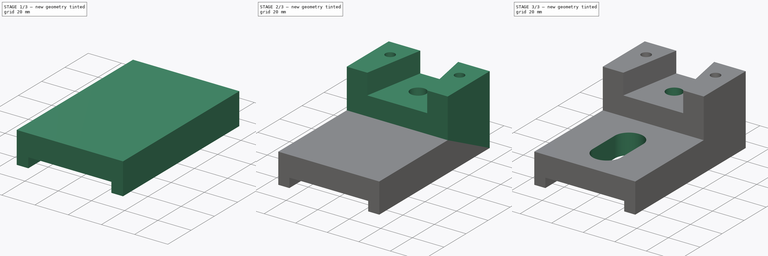
[diagram: build sequence overview — one tinted view per stage of 3, left to right]
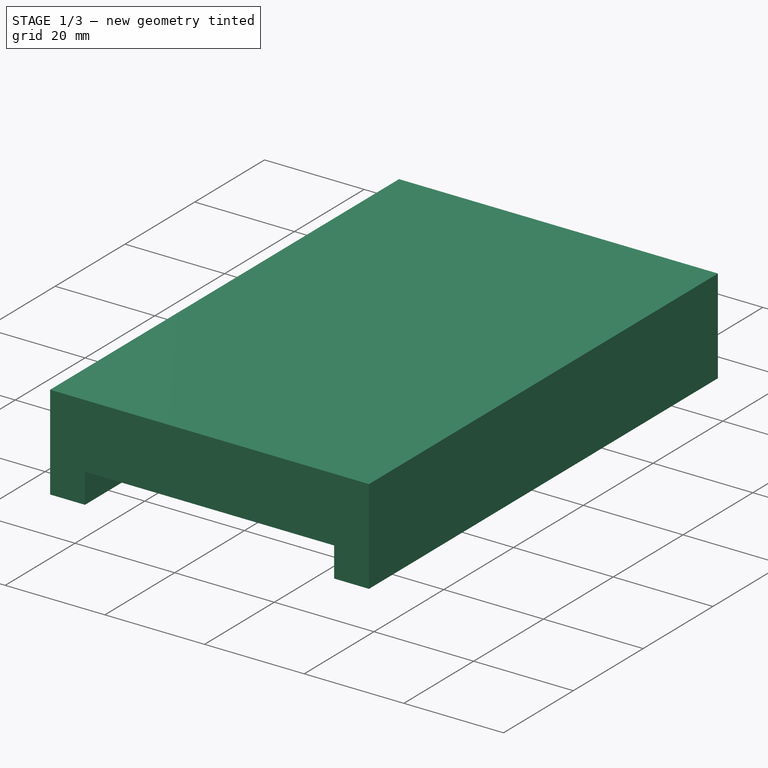
[diagram: stage 1 of 3 — iso view after this stage's code; geometry added in this stage tinted green]
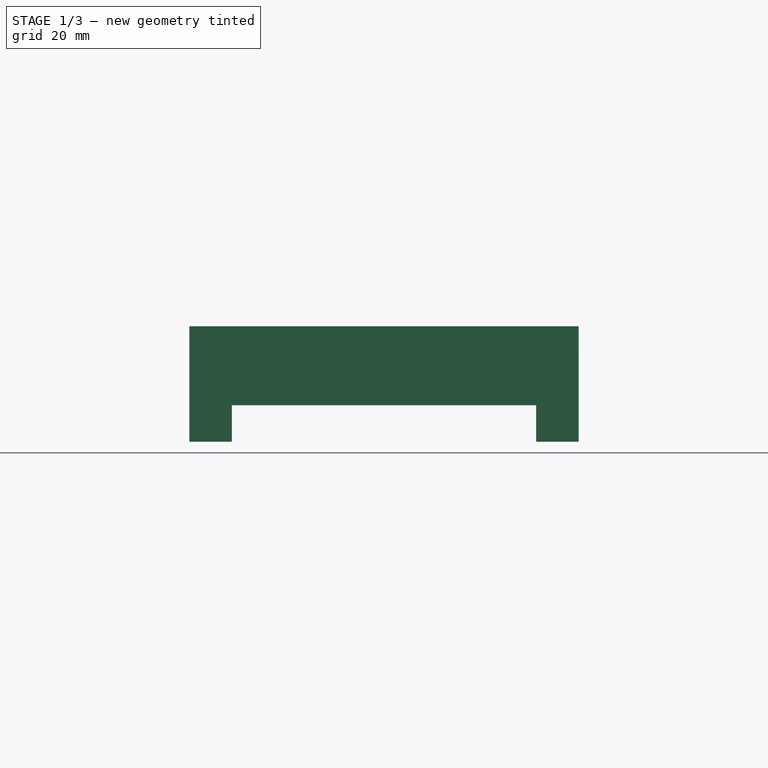
[diagram: stage 1 of 3 — front view after this stage's code; geometry added in this stage tinted green]
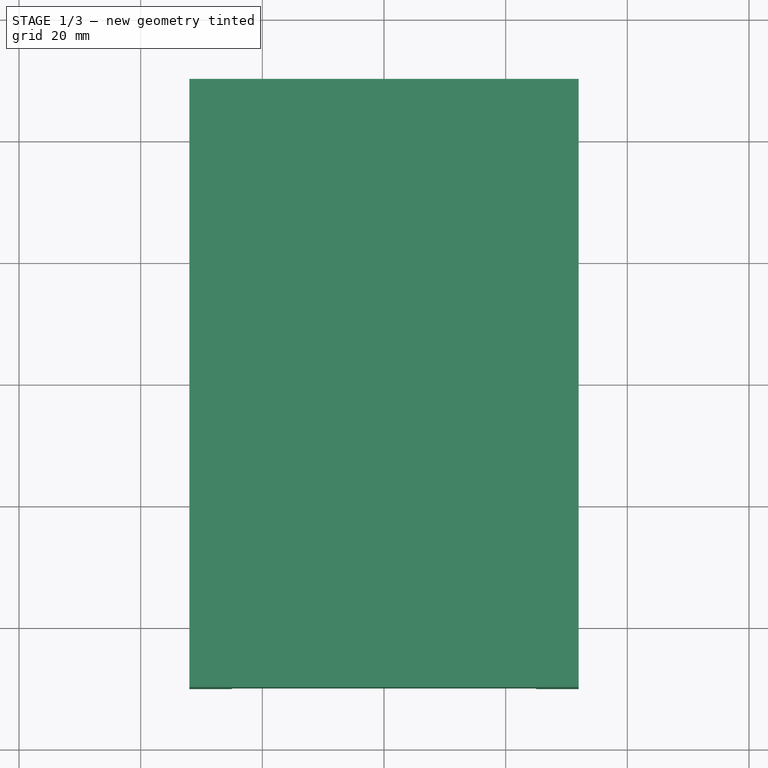
[diagram: stage 1 of 3 — top view after this stage's code; geometry added in this stage tinted green]
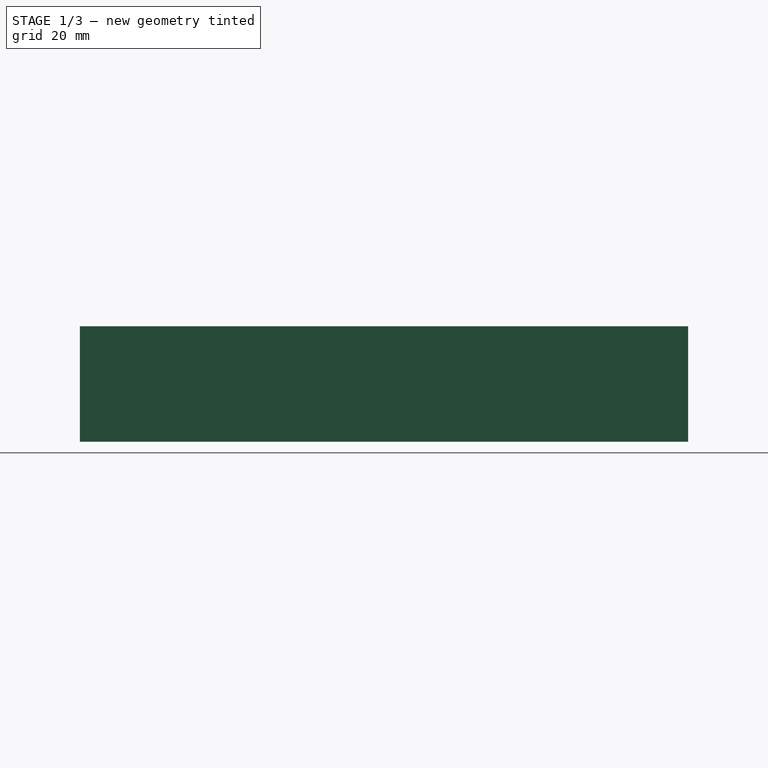
[diagram: stage 1 of 3 — right view after this stage's code; geometry added in this stage tinted green]
FCSTD DOCUMENT  (FreeCAD 0.16R)
Label: Fig 3.29 Final
License: All rights reserved
LicenseURL: http://en.wikipedia.org/wiki/All_rights_reserved
objects: Sketcher::SketchObject×7, PartDesign::Pocket×5, PartDesign::Pad×2
note: 21 computed .brp shape members not serialized (recipe doc carries the construction recipe); baked Part::Feature solids carry a one-line shape summary decoded from their .brp

FEATURE [Sketcher::SketchObject] Sketch
  sketch-geometry (4):
    g0: LineSegment StartX=-32 StartY=-50 StartZ=0 EndX=32 EndY=-50 EndZ=0
    g1: LineSegment StartX=32 StartY=-50 StartZ=0 EndX=32 EndY=50 EndZ=0
    g2: LineSegment StartX=32 StartY=50 StartZ=0 EndX=-32 EndY=50 EndZ=0
    g3: LineSegment StartX=-32 StartY=50 StartZ=0 EndX=-32 EndY=-50 EndZ=0
  constraints (12):
    c: Coincident(g0,g1)
    c: Coincident(g1,g2)
    c: Coincident(g2,g3)
    c: Coincident(g3,g0)
    c: Horizontal(g0)
    c: Horizontal(g2)
    c: Vertical(g1)
    c: Vertical(g3)
    c: DistanceY(g1,g1) = 100
    c: DistanceX(g0,g0) = 64
    c: Symmetric(g0,g0,g-2)
    c: Symmetric(g1,g0,g-1)
FEATURE [PartDesign::Pad] Pad
  Length = 19
  Length2 = 100
  Sketch = -> Sketch
  Type = 0
FEATURE [Sketcher::SketchObject] Sketch001
  ExternalGeometry = -> [Pad]
  Placement = pos=(0,-50,0) rot=(1,0,0;1.5708rad)
  Support = -> Pad [Face1]
  sketch-geometry (4):
    g0: LineSegment StartX=-25 StartY=-6.74666 StartZ=0 EndX=25 EndY=-6.74666 EndZ=0
    g1: LineSegment StartX=25 StartY=-6.74666 StartZ=0 EndX=25 EndY=6 EndZ=0
    g2: LineSegment StartX=25 StartY=6 StartZ=0 EndX=-25 EndY=6 EndZ=0
    g3: LineSegment StartX=-25 StartY=6 StartZ=0 EndX=-25 EndY=-6.74666 EndZ=0
  constraints (11):
    c: Coincident(g0,g1)
    c: Coincident(g1,g2)
    c: Coincident(g2,g3)
    c: Coincident(g3,g0)
    c: Horizontal(g0)
    c: Horizontal(g2)
    c: Vertical(g1)
    c: Vertical(g3)
    c: DistanceX(g-3,g2) = 7
    c: DistanceX(g1,g-3) = 7
    c: DistanceY(g-1,g1) = 6
FEATURE [PartDesign::Pocket] Pocket
  Length = 5
  Sketch = -> Sketch001
  Type = 1
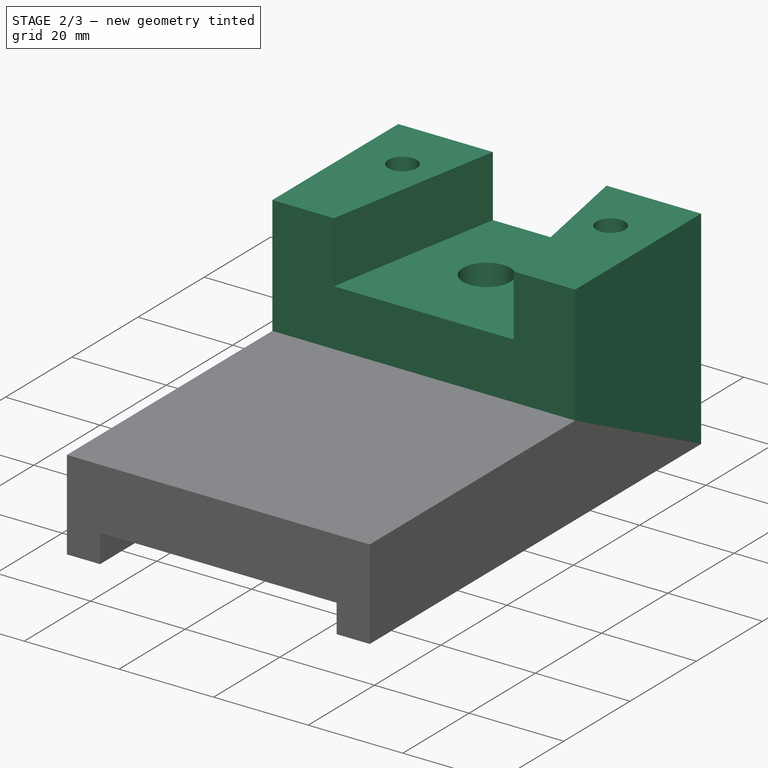
[diagram: stage 2 of 3 — iso view after this stage's code; geometry added in this stage tinted green]
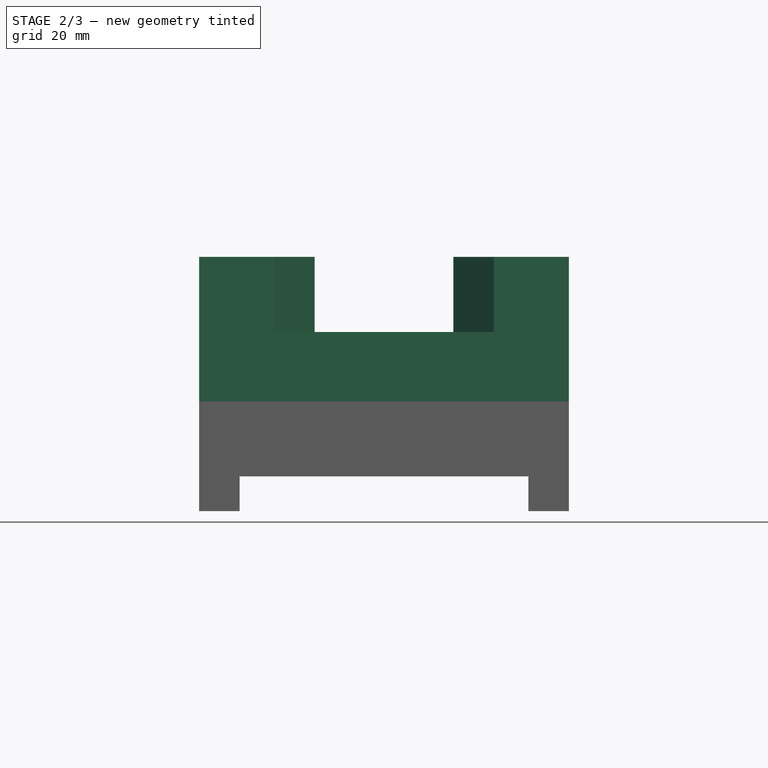
[diagram: stage 2 of 3 — front view after this stage's code; geometry added in this stage tinted green]
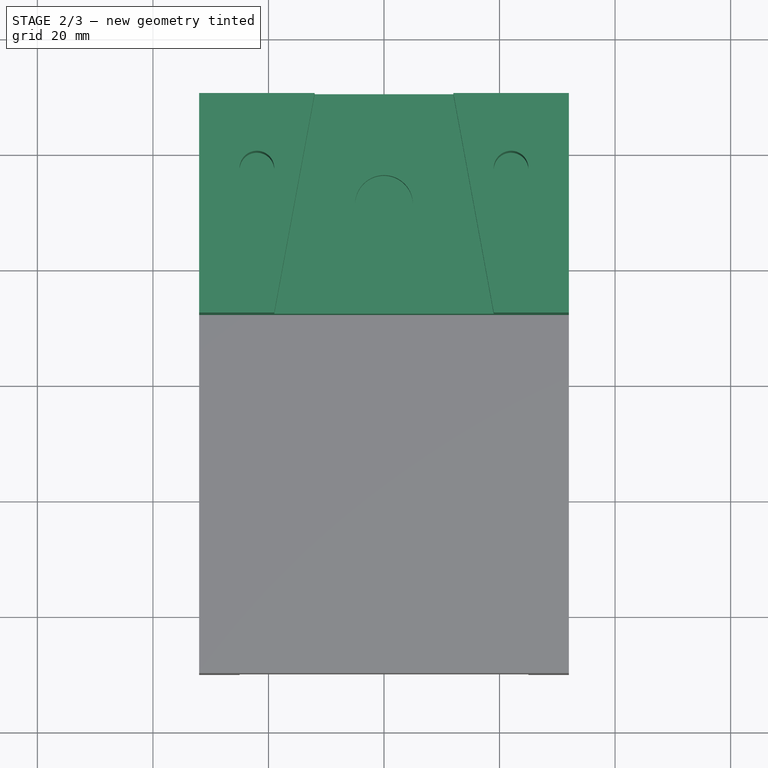
[diagram: stage 2 of 3 — top view after this stage's code; geometry added in this stage tinted green]
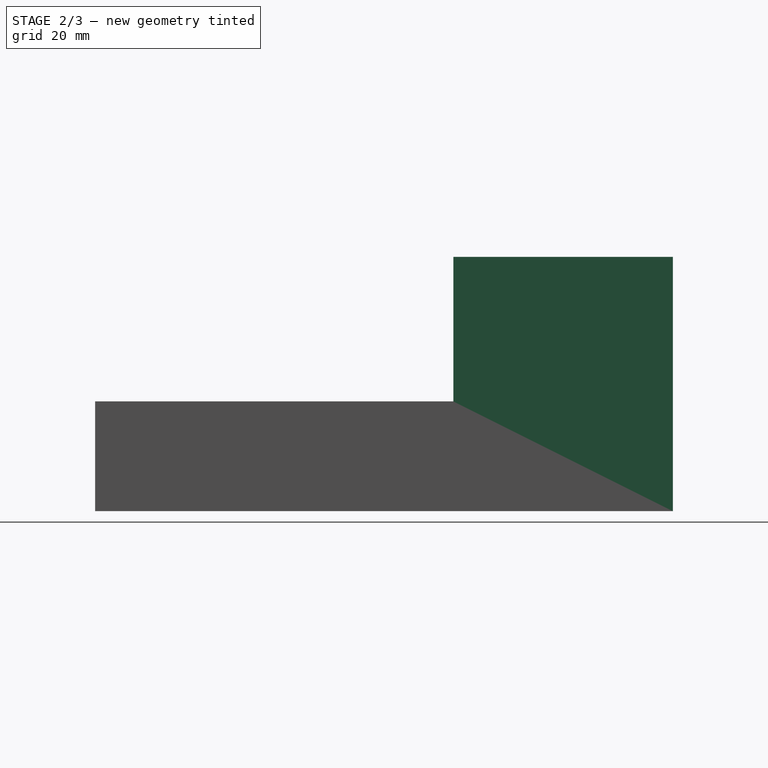
[diagram: stage 2 of 3 — right view after this stage's code; geometry added in this stage tinted green]
FEATURE [Sketcher::SketchObject] Sketch002
  ExternalGeometry = -> [Pocket]
  Placement = pos=(0,0,19) rot=(0,0,1;0rad)
  Support = -> Pocket [Face8]
  sketch-geometry (4):
    g0: LineSegment StartX=-32 StartY=50 StartZ=0 EndX=32 EndY=50 EndZ=0
    g1: LineSegment StartX=32 StartY=50 StartZ=0 EndX=32 EndY=12 EndZ=0
    g2: LineSegment StartX=32 StartY=12 StartZ=0 EndX=-32 EndY=12 EndZ=0
    g3: LineSegment StartX=-32 StartY=12 StartZ=0 EndX=-32 EndY=50 EndZ=0
  constraints (11):
    c: Coincident(g0,g1)
    c: Coincident(g1,g2)
    c: Coincident(g2,g3)
    c: Coincident(g3,g0)
    c: Horizontal(g0)
    c: Horizontal(g2)
    c: Vertical(g1)
    c: Vertical(g3)
    c: Coincident(g0,g-3)
    c: Coincident(g0,g-3)
    c: DistanceY(g3,g3) = 38
FEATURE [PartDesign::Pad] Pad001
  Length = 25
  Length2 = 100
  Sketch = -> Sketch002
  Type = 0
FEATURE [Sketcher::SketchObject] Sketch003
  ExternalGeometry = -> [Pad001]
  Placement = pos=(0,0,44) rot=(0,0,1;0rad)
  Support = -> Pad001 [Face9]
  sketch-geometry (4):
    g0: LineSegment StartX=-12 StartY=50 StartZ=0 EndX=-19 EndY=12 EndZ=0
    g1: LineSegment StartX=-19 StartY=12 StartZ=0 EndX=19 EndY=12 EndZ=0
    g2: LineSegment StartX=19 StartY=12 StartZ=0 EndX=12 EndY=50 EndZ=0
    g3: LineSegment StartX=12 StartY=50 StartZ=0 EndX=-12 EndY=50 EndZ=0
  constraints (12):
    c: Coincident(g0,g1)
    c: Horizontal(g1)
    c: Coincident(g1,g2)
    c: Coincident(g2,g3)
    c: Coincident(g3,g0)
    c: Horizontal(g3)
    c: PointOnObject(g0,g-3)
    c: PointOnObject(g0,g-4)
    c: DistanceX(g-4,g0) = 13
    c: DistanceX(g1,g-4) = 13
    c: DistanceX(g2,g-3) = 20
    c: DistanceX(g-3,g0) = 20
FEATURE [PartDesign::Pocket] Pocket001
  Length = 13
  Sketch = -> Sketch003
  Type = 0
FEATURE [Sketcher::SketchObject] Sketch004
  ExternalGeometry = -> [Pocket001]
  Placement = pos=(0,0,44) rot=(0,0,1;0rad)
  Support = -> Pocket001 [Face11]
  sketch-geometry (3):
    g0: Circle CenterX=-22 CenterY=37 CenterZ=0 NormalX=0 NormalY=0 NormalZ=1 Radius=3
    g1: Circle CenterX=22 CenterY=37 CenterZ=0 NormalX=0 NormalY=0 NormalZ=1 Radius=3
    g2: Circle CenterX=0 CenterY=31 CenterZ=0 NormalX=0 NormalY=0 NormalZ=1 Radius=5
  constraints (9):
    c: PointOnObject(g2,g-2)
    c: Radius(g2) = 5
    c: DistanceY(g-7,g2) = 19
    c: DistanceX(g-5,g1) = 10
    c: DistanceX(g0,g-6) = 10
    c: DistanceY(g0,g-6) = 13
    c: DistanceY(g1,g-5) = 13
    c: Radius(g0) = 3
    c: Equal(g0,g1)
FEATURE [PartDesign::Pocket] Pocket002
  Length = 20
  Sketch = -> Sketch004
  Type = 0
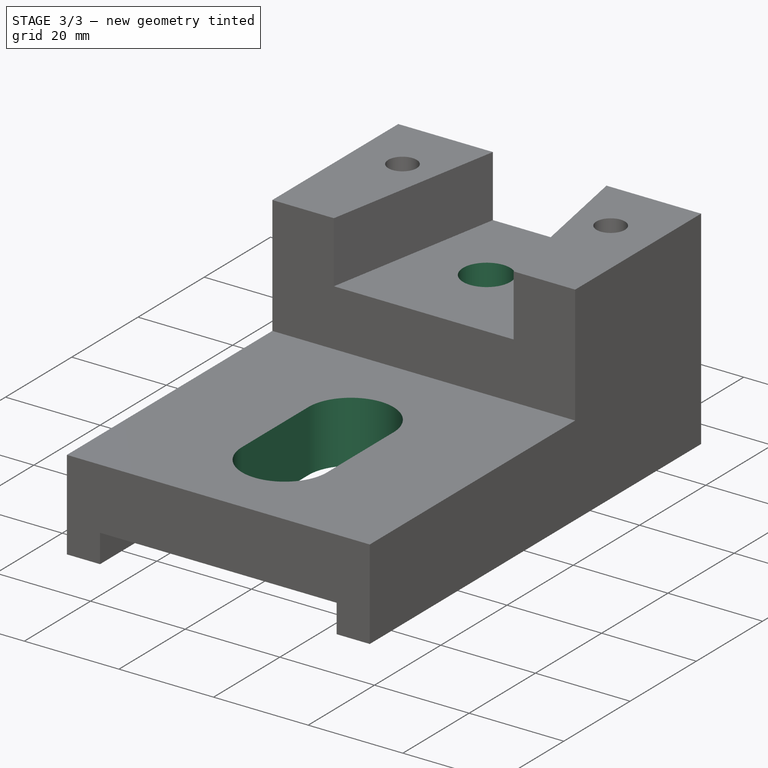
[diagram: stage 3 of 3 — iso view after this stage's code; geometry added in this stage tinted green]
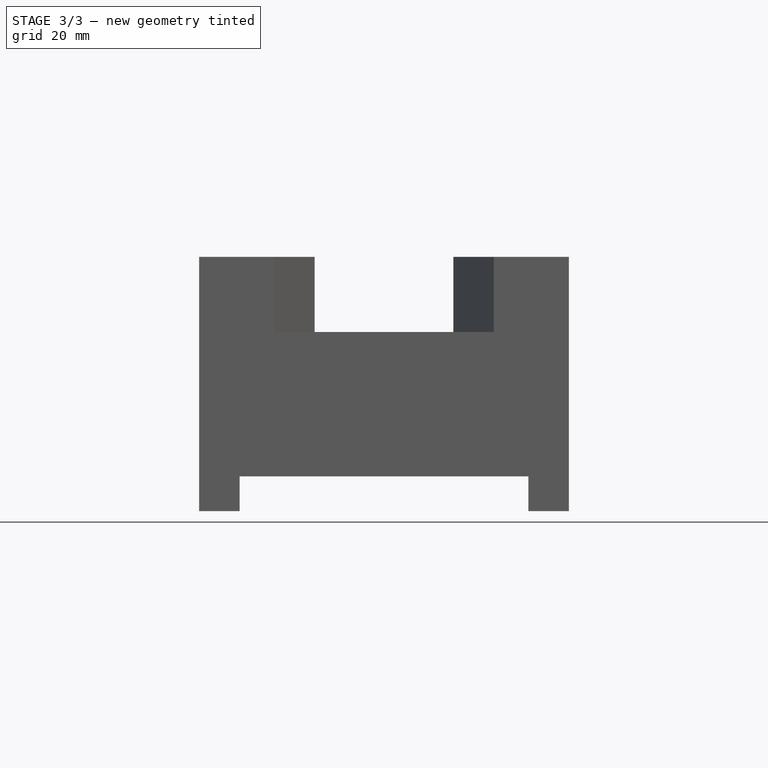
[diagram: stage 3 of 3 — front view after this stage's code; geometry added in this stage tinted green]
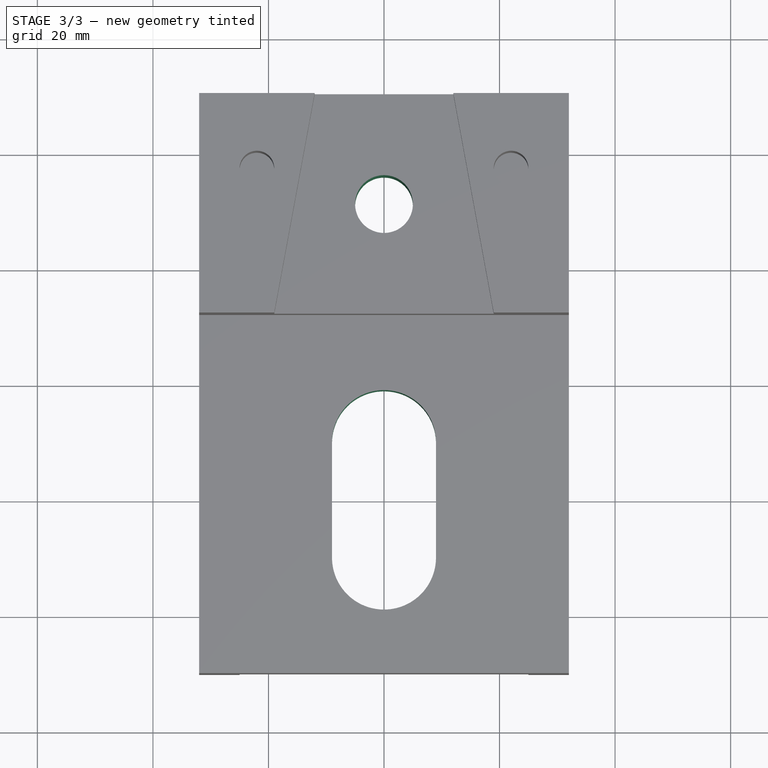
[diagram: stage 3 of 3 — top view after this stage's code; geometry added in this stage tinted green]
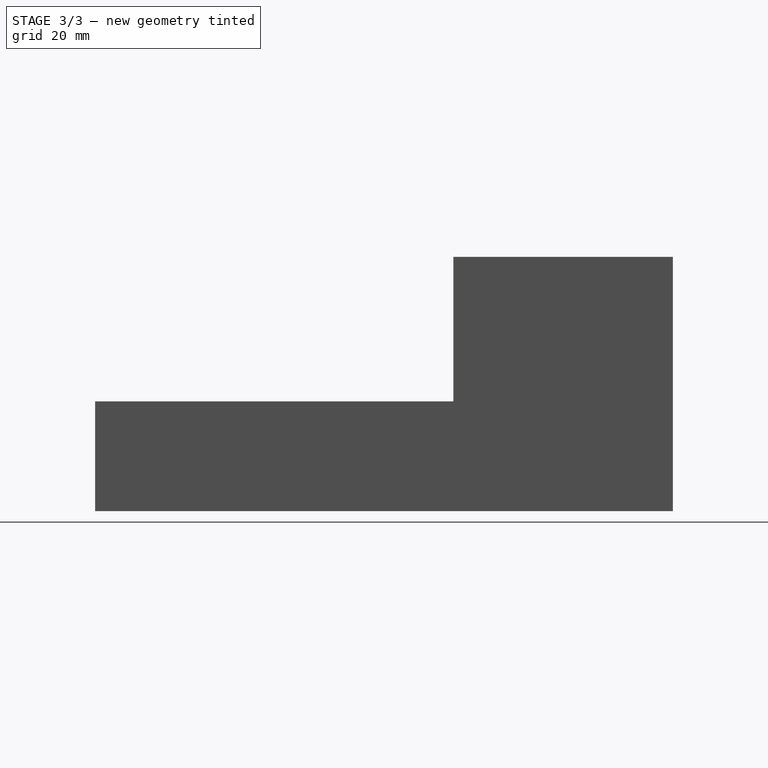
[diagram: stage 3 of 3 — right view after this stage's code; geometry added in this stage tinted green]
FEATURE [Sketcher::SketchObject] Sketch005
  ExternalGeometry = -> [Pocket002]
  Placement = pos=(0,0,24) rot=(0,0,1;0rad)
  Support = -> Pocket002 [Face22]
  sketch-geometry (1):
    g0: Circle CenterX=0 CenterY=31 CenterZ=0 NormalX=0 NormalY=0 NormalZ=1 Radius=5
  constraints (2):
    c: Coincident(g0,g-3)
    c: Equal(g-3,g0)
FEATURE [PartDesign::Pocket] Pocket003
  Length = 5
  Sketch = -> Sketch005
  Type = 1
FEATURE [Sketcher::SketchObject] Sketch006
  ExternalGeometry = -> [Pocket003]
  Placement = pos=(0,0,19) rot=(0,0,1;0rad)
  Support = -> Pocket003 [Face8]
  sketch-geometry (5):
    g0: ArcOfCircle CenterX=0 CenterY=-10 CenterZ=0 NormalX=0 NormalY=0 NormalZ=1 Radius=9 StartAngle=0 EndAngle=3.14159
    g1: ArcOfCircle CenterX=0 CenterY=-30 CenterZ=0 NormalX=0 NormalY=0 NormalZ=1 Radius=9 StartAngle=3.14159 EndAngle=6.28319
    g2: LineSegment StartX=-9 StartY=-10 StartZ=0 EndX=-9 EndY=-30 EndZ=0
    g3: LineSegment StartX=9 StartY=-10 StartZ=0 EndX=9 EndY=-30 EndZ=0
    g4: LineSegment [constr] StartX=0 StartY=-39 StartZ=0 EndX=0 EndY=-1 EndZ=0
  constraints (14):
    c: Tangent(g0,g3) = 1.5708
    c: Tangent(g0,g2) = -1.5708
    c: Tangent(g2,g1) = -1.5708
    c: Tangent(g3,g1) = 1.5708
    c: Vertical(g2)
    c: Equal(g0,g1)
    c: PointOnObject(g0,g-2)
    c: DistanceX(g1,g1) = 18
    c: PointOnObject(g4,g-2)
    c: Vertical(g4)
    c: PointOnObject(g4,g0)
    c: PointOnObject(g4,g1)
    c: DistanceY(g4,g4) = 38
    c: DistanceY(g4,g-3) = 13
FEATURE [PartDesign::Pocket] Pocket004
  Length = 5
  Sketch = -> Sketch006
  Type = 1
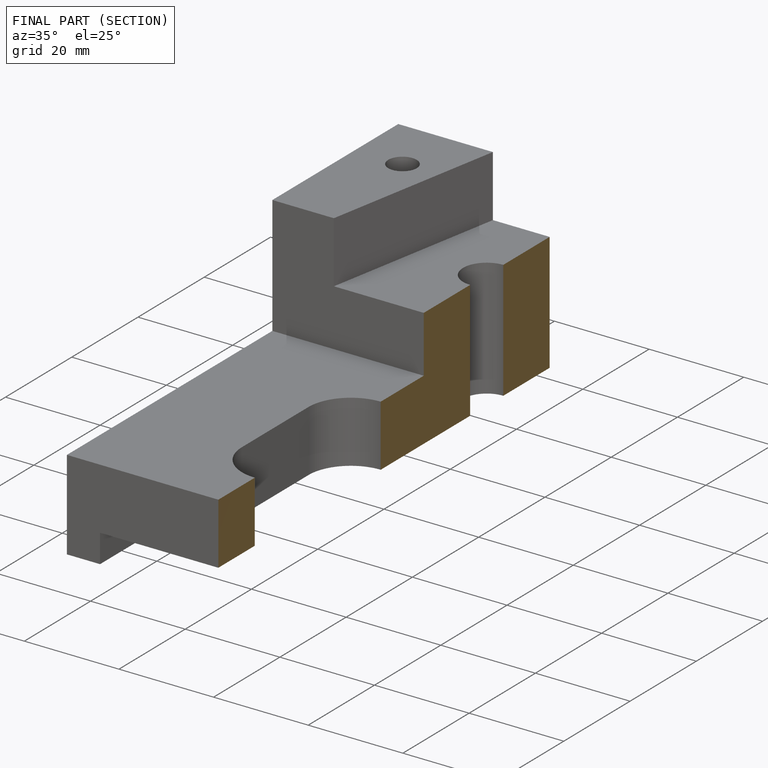
[diagram: finished part — half-section view (interior)]
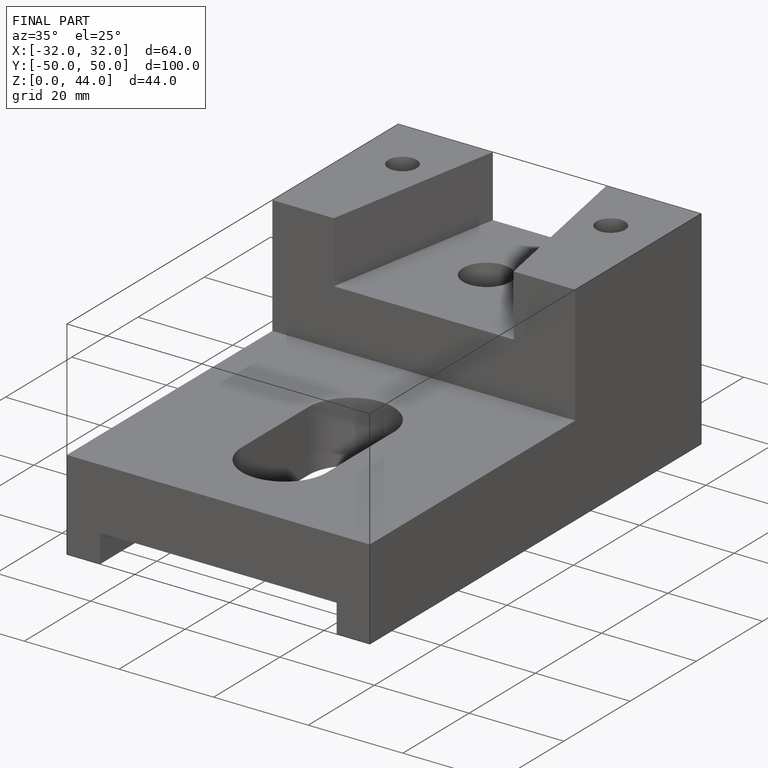
[diagram: finished part — iso view with bounding-box wireframe]
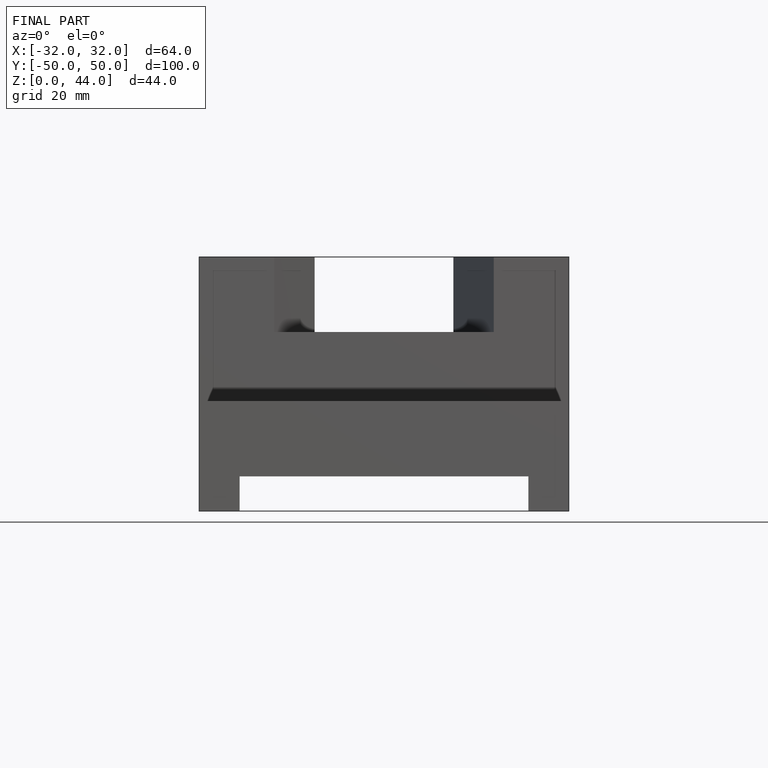
[diagram: finished part — front view with bounding-box wireframe]
